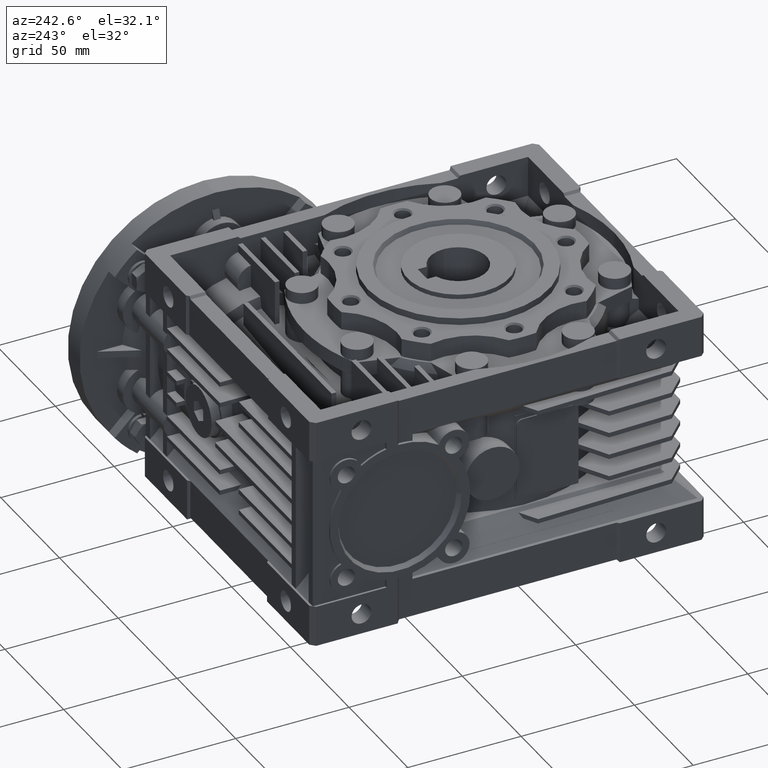
[diagram: clean part render]
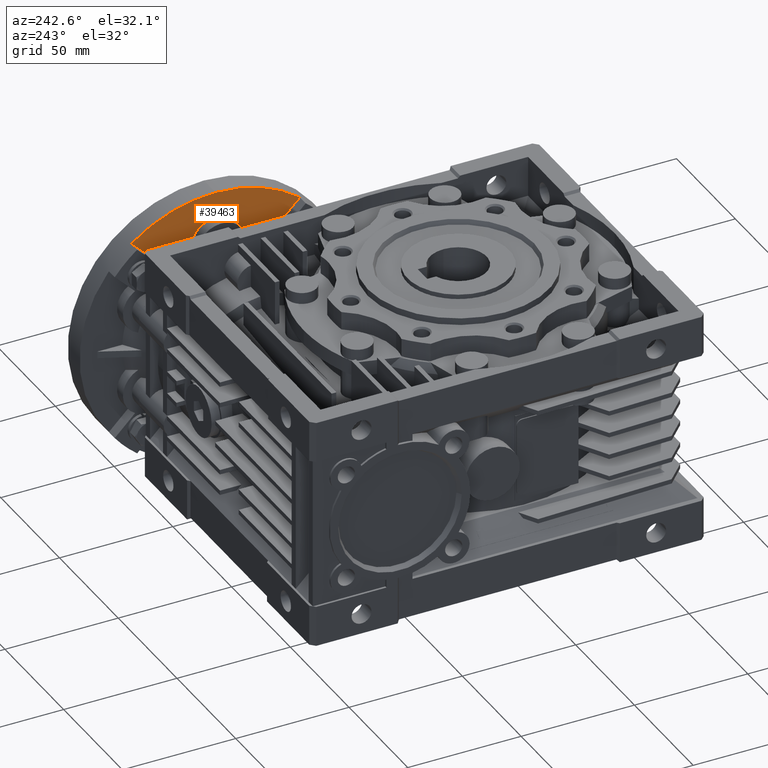
[diagram: same view with one face highlighted and labeled with its STEP entity id]
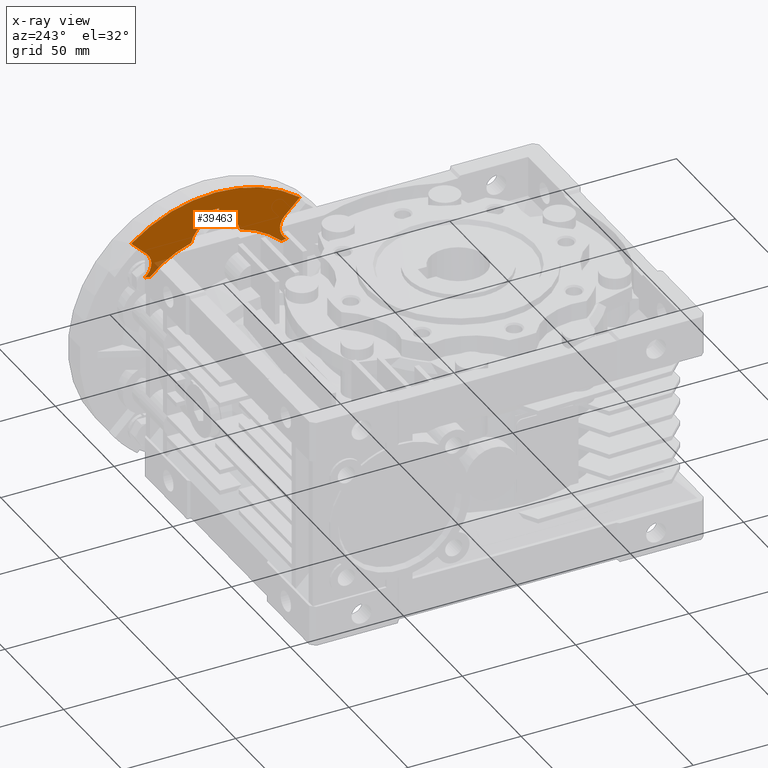
[diagram: x-ray of the same camera — body ghosted, the highlighted face saturated]
A machine part, auxiliary view. The second image highlights one B-rep face of the part: STEP entity #39463.
The next image is the same camera in x-ray: the body ghosted, the highlighted face saturated — about 1% of this face is hidden behind the body in this view.
In plain terms, the highlighted planar face has unit normal (1, 0, 0).
Its self-contained STEP definition (entity closure, byte-faithful):
#406 = CARTESIAN_POINT ( 'NONE',  ( 84.99999999999998579, 92.01681462697122527, 29.19195212561139741 ) ) ;
#562 = VERTEX_POINT ( 'NONE', #41133 ) ;
#852 = VECTOR ( 'NONE', #10053, 1000.000000000000000 ) ;
#1435 = DIRECTION ( 'NONE',  ( 0.000000000000000000, 0.7071067811865480168, -0.7071067811865470176 ) ) ;
#2140 = AXIS2_PLACEMENT_3D ( 'NONE', #37151, #26826, #23303 ) ;
#2724 = CARTESIAN_POINT ( 'NONE',  ( 85.00000000000000000, 61.50000000000000000, 0.000000000000000000 ) ) ;
#2781 = CIRCLE ( 'NONE', #25267, 11.00000000000000000 ) ;
#3397 = LINE ( 'NONE', #20576, #14061 ) ;
#3902 = ORIENTED_EDGE ( 'NONE', *, *, #23189, .F. ) ;
#4101 = CARTESIAN_POINT ( 'NONE',  ( 85.00000000000000000, 63.00000000000000000, -2.775557561562889773E-14 ) ) ;
#4216 = VERTEX_POINT ( 'NONE', #28385 ) ;
#4218 = CARTESIAN_POINT ( 'NONE',  ( 85.00000000000000000, 104.1599999999999966, 0.000000000000000000 ) ) ;
#5251 = ORIENTED_EDGE ( 'NONE', *, *, #40913, .F. ) ;
#5393 = DIRECTION ( 'NONE',  ( 0.000000000000000000, 0.000000000000000000, 1.000000000000000000 ) ) ;
#5636 = DIRECTION ( 'NONE',  ( -1.000000000000000000, 0.000000000000000000, 0.000000000000000000 ) ) ;
#5991 = DIRECTION ( 'NONE',  ( 0.000000000000000000, 0.000000000000000000, 1.000000000000000000 ) ) ;
#6351 = ORIENTED_EDGE ( 'NONE', *, *, #24722, .F. ) ;
#6478 = EDGE_CURVE ( 'NONE', #27343, #31102, #30387, .T. ) ;
#7397 = DIRECTION ( 'NONE',  ( 0.000000000000000000, 0.000000000000000000, -1.000000000000000000 ) ) ;
#8368 = EDGE_CURVE ( 'NONE', #41242, #27371, #37250, .T. ) ;
#8398 = ORIENTED_EDGE ( 'NONE', *, *, #6478, .F. ) ;
#8649 = ORIENTED_EDGE ( 'NONE', *, *, #9018, .F. ) ;
#9018 = EDGE_CURVE ( 'NONE', #20660, #46308, #3397, .T. ) ;
#9486 = DIRECTION ( 'NONE',  ( -1.000000000000000000, -1.329888757596894006E-46, -7.486608141446979658E-32 ) ) ;
#9646 = VECTOR ( 'NONE', #5991, 1000.000000000000000 ) ;
#9770 = CARTESIAN_POINT ( 'NONE',  ( 84.99999999999998579, 73.77256481335302851, 39.72527466666666385 ) ) ;
#9812 = CARTESIAN_POINT ( 'NONE',  ( 85.00000000000000000, 32.59440840897849512, 40.30508652763320043 ) ) ;
#9841 = AXIS2_PLACEMENT_3D ( 'NONE', #4101, #17980, #7397 ) ;
#10053 = DIRECTION ( 'NONE',  ( 0.000000000000000000, 0.000000000000000000, -1.000000000000000000 ) ) ;
#10355 = DIRECTION ( 'NONE',  ( -1.000000000000000000, 0.000000000000000000, 0.000000000000000000 ) ) ;
#11099 = CARTESIAN_POINT ( 'NONE',  ( 85.00000000000000000, 64.50000000000000000, 52.25396322609580579 ) ) ;
#11142 = DIRECTION ( 'NONE',  ( 0.000000000000000000, 0.7071067811865474617, 0.7071067811865474617 ) ) ;
#12196 = VERTEX_POINT ( 'NONE', #28724 ) ;
#12266 = VERTEX_POINT ( 'NONE', #31587 ) ;
#12342 = AXIS2_PLACEMENT_3D ( 'NONE', #33138, #36420, #40406 ) ;
#12781 = DIRECTION ( 'NONE',  ( 0.000000000000000000, 0.000000000000000000, 1.000000000000000000 ) ) ;
#13351 = CIRCLE ( 'NONE', #2140, 60.00000000000000000 ) ;
#13866 = CIRCLE ( 'NONE', #38661, 6.999999999999999112 ) ;
#14061 = VECTOR ( 'NONE', #1435, 1000.000000000000000 ) ;
#14723 = AXIS2_PLACEMENT_3D ( 'NONE', #34066, #30540, #41326 ) ;
#15428 = DIRECTION ( 'NONE',  ( -1.000000000000000000, 0.000000000000000000, 0.000000000000000000 ) ) ;
#15446 = ORIENTED_EDGE ( 'NONE', *, *, #39634, .F. ) ;
#15903 = CARTESIAN_POINT ( 'NONE',  ( 85.00000000000000000, 63.00000000000000000, 37.50000000000000000 ) ) ;
#16563 = LINE ( 'NONE', #2724, #9646 ) ;
#17327 = CARTESIAN_POINT ( 'NONE',  ( 85.00000000000000000, 61.50000000000000000, 52.25396322609580579 ) ) ;
#17514 = CIRCLE ( 'NONE', #21265, 41.16000000000000369 ) ;
#17962 = VERTEX_POINT ( 'NONE', #11099 ) ;
#17980 = DIRECTION ( 'NONE',  ( 1.000000000000000000, 0.000000000000000000, 0.000000000000000000 ) ) ;
#18100 = ORIENTED_EDGE ( 'NONE', *, *, #8368, .F. ) ;
#18298 = EDGE_CURVE ( 'NONE', #38203, #29667, #17514, .T. ) ;
#18360 = VERTEX_POINT ( 'NONE', #21670 ) ;
#18549 = DIRECTION ( 'NONE',  ( 1.000000000000000000, 0.000000000000000000, 0.000000000000000000 ) ) ;
#18726 = EDGE_CURVE ( 'NONE', #12266, #27343, #40760, .T. ) ;
#19232 = ORIENTED_EDGE ( 'NONE', *, *, #18298, .F. ) ;
#20576 = CARTESIAN_POINT ( 'NONE',  ( 85.00000000000000000, 32.59440840897849512, 40.30508652763320043 ) ) ;
#20660 = VERTEX_POINT ( 'NONE', #30250 ) ;
#20736 = LINE ( 'NONE', #28431, #24757 ) ;
#20959 = DIRECTION ( 'NONE',  ( 0.000000000000000000, 1.000000000000000000, 0.000000000000000000 ) ) ;
#21265 = AXIS2_PLACEMENT_3D ( 'NONE', #41679, #9486, #27564 ) ;
#21410 = EDGE_CURVE ( 'NONE', #46308, #18360, #13866, .T. ) ;
#21670 = CARTESIAN_POINT ( 'NONE',  ( 85.00000000000000000, 31.74508250670440290, 29.68202054360639863 ) ) ;
#23150 = CARTESIAN_POINT ( 'NONE',  ( 85.00000000000000000, 27.64466094067270063, 35.35533905932739884 ) ) ;
#23189 = EDGE_CURVE ( 'NONE', #31102, #41242, #2781, .T. ) ;
#23303 = DIRECTION ( 'NONE',  ( 0.000000000000000000, 0.000000000000000000, -1.000000000000000000 ) ) ;
#23585 = EDGE_CURVE ( 'NONE', #29667, #4216, #38064, .T. ) ;
#23771 = VERTEX_POINT ( 'NONE', #17327 ) ;
#23896 = CARTESIAN_POINT ( 'NONE',  ( 85.00000000000000000, 93.40559159102160436, 40.30508652763320043 ) ) ;
#24722 = EDGE_CURVE ( 'NONE', #4216, #23771, #16563, .T. ) ;
#24757 = VECTOR ( 'NONE', #20959, 1000.000000000000000 ) ;
#25040 = AXIS2_PLACEMENT_3D ( 'NONE', #40096, #25769, #33284 ) ;
#25267 = AXIS2_PLACEMENT_3D ( 'NONE', #44363, #5636, #5393 ) ;
#25769 = DIRECTION ( 'NONE',  ( -1.000000000000000000, 0.000000000000000000, 0.000000000000000000 ) ) ;
#26161 = LINE ( 'NONE', #36058, #32334 ) ;
#26522 = EDGE_CURVE ( 'NONE', #23771, #17962, #20736, .T. ) ;
#26826 = DIRECTION ( 'NONE',  ( 1.000000000000000000, 0.000000000000000000, 0.000000000000000000 ) ) ;
#27343 = VERTEX_POINT ( 'NONE', #9770 ) ;
#27371 = VERTEX_POINT ( 'NONE', #23896 ) ;
#27411 = CARTESIAN_POINT ( 'NONE',  ( 85.00000000000000000, 94.25491749329580671, 29.68202054360639863 ) ) ;
#27548 = EDGE_CURVE ( 'NONE', #12196, #20660, #40582, .T. ) ;
#27564 = DIRECTION ( 'NONE',  ( 0.000000000000000000, 1.000000000000000000, -1.776356839400250070E-15 ) ) ;
#28385 = CARTESIAN_POINT ( 'NONE',  ( 85.00000000000000000, 61.50000000000000000, 48.39724735885170048 ) ) ;
#28431 = CARTESIAN_POINT ( 'NONE',  ( 85.00000000000000000, 104.1599999999999966, 52.25396322609580579 ) ) ;
#28687 = EDGE_CURVE ( 'NONE', #27371, #562, #26161, .T. ) ;
#28724 = CARTESIAN_POINT ( 'NONE',  ( 85.00000000000000000, 63.00000000000001421, 59.99999999999997158 ) ) ;
#29667 = VERTEX_POINT ( 'NONE', #33238 ) ;
#30236 = DIRECTION ( 'NONE',  ( 0.000000000000000000, 0.000000000000000000, 1.000000000000000000 ) ) ;
#30250 = CARTESIAN_POINT ( 'NONE',  ( 85.00000000000000000, 25.81306511195515085, 47.08642982465660509 ) ) ;
#30387 = CIRCLE ( 'NONE', #12342, 41.16000000000000369 ) ;
#30540 = DIRECTION ( 'NONE',  ( -1.000000000000000000, 0.000000000000000000, 0.000000000000000000 ) ) ;
#30990 = DIRECTION ( 'NONE',  ( 0.000000000000000000, 1.000000000000000000, 0.000000000000000000 ) ) ;
#31102 = VERTEX_POINT ( 'NONE', #406 ) ;
#31587 = CARTESIAN_POINT ( 'NONE',  ( 85.00000000000000000, 64.50000000000000000, 48.39724735885170048 ) ) ;
#31609 = ORIENTED_EDGE ( 'NONE', *, *, #28687, .F. ) ;
#31689 = EDGE_CURVE ( 'NONE', #17962, #12266, #38738, .T. ) ;
#32334 = VECTOR ( 'NONE', #11142, 1000.000000000000114 ) ;
#33138 = CARTESIAN_POINT ( 'NONE',  ( 85.00000000000000000, 63.00000000000000000, 0.000000000000000000 ) ) ;
#33238 = CARTESIAN_POINT ( 'NONE',  ( 85.00000000000000000, 52.22743518664699280, 39.72527466666665674 ) ) ;
#33284 = DIRECTION ( 'NONE',  ( 0.000000000000000000, 0.000000000000000000, 1.000000000000000000 ) ) ;
#33332 = ORIENTED_EDGE ( 'NONE', *, *, #26522, .F. ) ;
#33741 = ORIENTED_EDGE ( 'NONE', *, *, #23585, .F. ) ;
#34066 = CARTESIAN_POINT ( 'NONE',  ( 85.00000000000000000, 30.52404735808359959, 18.75000000000000000 ) ) ;
#34247 = ORIENTED_EDGE ( 'NONE', *, *, #31689, .F. ) ;
#35875 = CARTESIAN_POINT ( 'NONE',  ( 85.00000000000000000, 64.50000000000000000, 0.000000000000000000 ) ) ;
#36058 = CARTESIAN_POINT ( 'NONE',  ( 85.00000000000000000, 93.40559159102160436, 40.30508652763320043 ) ) ;
#36420 = DIRECTION ( 'NONE',  ( -1.000000000000000000, 0.000000000000000000, 0.000000000000000000 ) ) ;
#37151 = CARTESIAN_POINT ( 'NONE',  ( 85.00000000000000000, 63.00000000000000000, -2.775557561562889773E-14 ) ) ;
#37250 = CIRCLE ( 'NONE', #46258, 6.999999999999999112 ) ;
#38064 = CIRCLE ( 'NONE', #44025, 11.00000000000000355 ) ;
#38203 = VERTEX_POINT ( 'NONE', #42308 ) ;
#38661 = AXIS2_PLACEMENT_3D ( 'NONE', #23150, #44980, #12781 ) ;
#38738 = LINE ( 'NONE', #35875, #852 ) ;
#39463 = ADVANCED_FACE ( 'NONE', ( #43437 ), #39906, .F. ) ;
#39471 = DIRECTION ( 'NONE',  ( 0.000000000000000000, 0.000000000000000000, 1.000000000000000000 ) ) ;
#39634 = EDGE_CURVE ( 'NONE', #18360, #38203, #41803, .T. ) ;
#39813 = ORIENTED_EDGE ( 'NONE', *, *, #21410, .F. ) ;
#39906 = PLANE ( 'NONE',  #40215 ) ;
#40096 = CARTESIAN_POINT ( 'NONE',  ( 85.00000000000000000, 63.00000000000000000, 37.50000000000000000 ) ) ;
#40215 = AXIS2_PLACEMENT_3D ( 'NONE', #4218, #18549, #30990 ) ;
#40406 = DIRECTION ( 'NONE',  ( 0.000000000000000000, 0.000000000000000000, -1.000000000000000000 ) ) ;
#40582 = CIRCLE ( 'NONE', #9841, 60.00000000000000000 ) ;
#40760 = CIRCLE ( 'NONE', #25040, 11.00000000000000355 ) ;
#40913 = EDGE_CURVE ( 'NONE', #562, #12196, #13351, .T. ) ;
#41133 = CARTESIAN_POINT ( 'NONE',  ( 85.00000000000000000, 100.1869348880450019, 47.08642982465649851 ) ) ;
#41242 = VERTEX_POINT ( 'NONE', #27411 ) ;
#41326 = DIRECTION ( 'NONE',  ( 0.000000000000000000, 0.000000000000000000, 1.000000000000000000 ) ) ;
#41679 = CARTESIAN_POINT ( 'NONE',  ( 85.00000000000000000, 63.00000000000000000, 0.000000000000000000 ) ) ;
#41803 = CIRCLE ( 'NONE', #14723, 11.00000000000000000 ) ;
#42308 = CARTESIAN_POINT ( 'NONE',  ( 85.00000000000000000, 33.98318537302878894, 29.19195212561142938 ) ) ;
#42555 = CARTESIAN_POINT ( 'NONE',  ( 85.00000000000000000, 98.35533905932740595, 35.35533905932739884 ) ) ;
#42605 = ORIENTED_EDGE ( 'NONE', *, *, #27548, .F. ) ;
#43437 = FACE_OUTER_BOUND ( 'NONE', #45004, .T. ) ;
#43827 = ORIENTED_EDGE ( 'NONE', *, *, #18726, .F. ) ;
#44025 = AXIS2_PLACEMENT_3D ( 'NONE', #15903, #15428, #30236 ) ;
#44363 = CARTESIAN_POINT ( 'NONE',  ( 85.00000000000000000, 95.47595264191649278, 18.75000000000000000 ) ) ;
#44980 = DIRECTION ( 'NONE',  ( -1.000000000000000000, 0.000000000000000000, 0.000000000000000000 ) ) ;
#45004 = EDGE_LOOP ( 'NONE', ( #5251, #31609, #18100, #3902, #8398, #43827, #34247, #33332, #6351, #33741, #19232, #15446, #39813, #8649, #42605 ) ) ;
#46258 = AXIS2_PLACEMENT_3D ( 'NONE', #42555, #10355, #39471 ) ;
#46308 = VERTEX_POINT ( 'NONE', #9812 ) ;